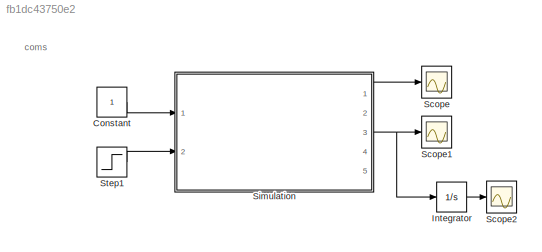
MODEL slx_fb1dc43750e2
KIND model
CONFIG AbsTol = auto
CONFIG EnableMultiTasking = off
CONFIG FixedStep = auto
CONFIG MaxStep = auto
CONFIG MinStep = auto
CONFIG RelTol = 1e-3
CONFIG SampleTimeConstraint = Unconstrained
CONFIG SolverName = VariableStepAuto
CONFIG StartTime = 0.0
CONFIG StopTime = 10.0
BLOCK [Constant] Constant
BLOCK [Integrator] Integrator
  Ports = [1, 1]
BLOCK [Scope] Scope
  Floating = off
  NumInputPorts = 1
  Ports = [1]
  ScopeSpecificationString = Simulink.scopes.TimeScopeBlockCfg('CurrentConfiguration', extmgr.ConfigurationSet(extmgr.Configuration('Core','General UI',true),extmgr.Configuration('Core','Source UI',true),extmgr.Configuration('Sources','WiredSimulink',true),extmgr.Configuration('Visuals','Time Domain',true,'SerializedDisplays',{struct('MinYLimReal','-0.12526','MaxYLimReal','1.12731','YLabelReal','','MinYLimMag','0.00000','MaxY...<+1361ch>
BLOCK [Scope] Scope1
  Floating = off
  NumInputPorts = 1
  Ports = [1]
  ScopeSpecificationString = Simulink.scopes.TimeScopeBlockCfg('CurrentConfiguration', extmgr.ConfigurationSet(extmgr.Configuration('Core','General UI',true),extmgr.Configuration('Core','Source UI',true),extmgr.Configuration('Sources','WiredSimulink',true,'DataLoggingVariableName','ScopeData1'),extmgr.Configuration('Visuals','Time Domain',true,'SerializedDisplays',{struct('MinYLimReal','-0.06989','MaxYLimReal','0.62903','YLab...<+1401ch>
BLOCK [Scope] Scope2
  Floating = off
  NumInputPorts = 1
  Ports = [1]
  ScopeSpecificationString = Simulink.scopes.TimeScopeBlockCfg('CurrentConfiguration', extmgr.ConfigurationSet(extmgr.Configuration('Core','General UI',true),extmgr.Configuration('Core','Source UI',true),extmgr.Configuration('Sources','WiredSimulink',true,'DataLoggingVariableName','ScopeData2'),extmgr.Configuration('Visuals','Time Domain',true,'SerializedDisplays',{struct('MinYLimReal','-0.25037','MaxYLimReal','2.25333','YLab...<+1398ch>
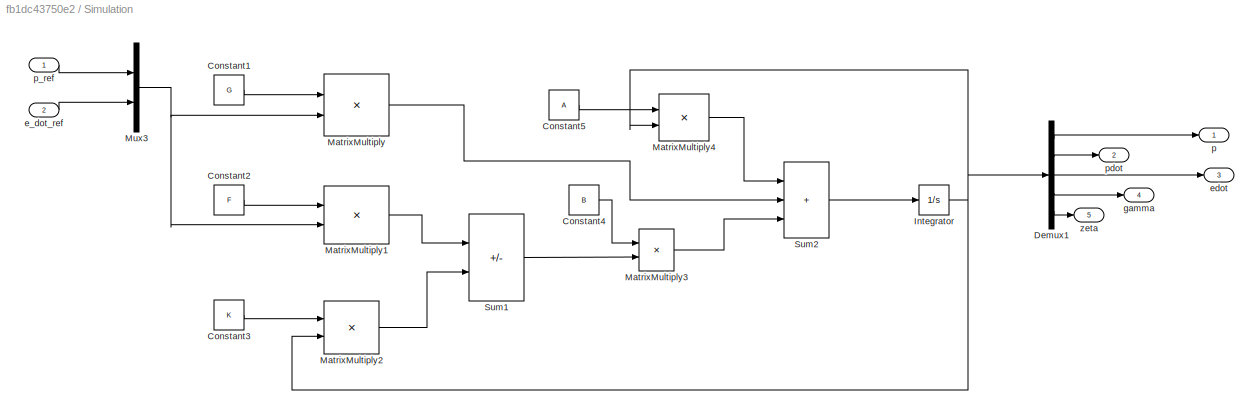
BLOCK [SubSystem] Simulation
  Ports = [2, 5]
  RequestExecContextInheritance = off
BLOCK [Constant] Simulation/Constant1
  Value = G
BLOCK [Constant] Simulation/Constant2
  Value = F
BLOCK [Constant] Simulation/Constant3
  Value = K
BLOCK [Constant] Simulation/Constant4
  Value = B
BLOCK [Constant] Simulation/Constant5
  Value = A
BLOCK [Demux] Simulation/Demux1
  Outputs = 5
  Ports = [1, 5]
BLOCK [Integrator] Simulation/Integrator
  Ports = [1, 1]
BLOCK [Product] Simulation/MatrixMultiply
  Multiplication = Matrix(*)
  Ports = [2, 1]
BLOCK [Product] Simulation/MatrixMultiply1
  Multiplication = Matrix(*)
  Ports = [2, 1]
BLOCK [Product] Simulation/MatrixMultiply2
  Multiplication = Matrix(*)
  Ports = [2, 1]
BLOCK [Product] Simulation/MatrixMultiply3
  Multiplication = Matrix(*)
  Ports = [2, 1]
BLOCK [Product] Simulation/MatrixMultiply4
  Multiplication = Matrix(*)
  Ports = [2, 1]
BLOCK [Mux] Simulation/Mux3
  DisplayOption = bar
  Inputs = 2
  Ports = [2, 1]
BLOCK [Sum] Simulation/Sum1
  IconShape = rectangular
  Inputs = +-
  Ports = [2, 1]
BLOCK [Sum] Simulation/Sum2
  IconShape = rectangular
  Inputs = +++
  Ports = [3, 1]
BLOCK [Inport] Simulation/e_dot_ref
  Port = 2
BLOCK [Outport] Simulation/edot
  Port = 3
BLOCK [Outport] Simulation/gamma
  Port = 4
BLOCK [Outport] Simulation/p
BLOCK [Inport] Simulation/p_ref
BLOCK [Outport] Simulation/pdot
  Port = 2
BLOCK [Outport] Simulation/zeta
  Port = 5
BLOCK [Step] Step1
  After = 0
  Before = 1
  SampleTime = 0
  Time = 2
ANNOTATION (root): coms
LINE Constant:1 -> Simulation:1
LINE Integrator:1 -> Scope2:1
LINE Simulation/Constant1:1 -> Simulation/MatrixMultiply:1
LINE Simulation/Constant2:1 -> Simulation/MatrixMultiply1:1
LINE Simulation/Constant3:1 -> Simulation/MatrixMultiply2:1
LINE Simulation/Constant4:1 -> Simulation/MatrixMultiply3:1
LINE Simulation/Constant5:1 -> Simulation/MatrixMultiply4:1
LINE Simulation/Demux1:1 -> Simulation/p:1
LINE Simulation/Demux1:2 -> Simulation/pdot:1
LINE Simulation/Demux1:3 -> Simulation/edot:1
LINE Simulation/Demux1:4 -> Simulation/gamma:1
LINE Simulation/Demux1:5 -> Simulation/zeta:1
NET Simulation/Integrator:1 -> Simulation/Demux1:1, Simulation/MatrixMultiply2:2, Simulation/MatrixMultiply4:2
LINE Simulation/MatrixMultiply1:1 -> Simulation/Sum1:1
LINE Simulation/MatrixMultiply2:1 -> Simulation/Sum1:2
LINE Simulation/MatrixMultiply3:1 -> Simulation/Sum2:3
LINE Simulation/MatrixMultiply4:1 -> Simulation/Sum2:1
LINE Simulation/MatrixMultiply:1 -> Simulation/Sum2:2
NET Simulation/Mux3:1 -> Simulation/MatrixMultiply1:2, Simulation/MatrixMultiply:2
LINE Simulation/Sum1:1 -> Simulation/MatrixMultiply3:2
LINE Simulation/Sum2:1 -> Simulation/Integrator:1
LINE Simulation/e_dot_ref:1 -> Simulation/Mux3:2
LINE Simulation/p_ref:1 -> Simulation/Mux3:1
LINE Simulation:1 -> Scope:1
NET Simulation:3 -> Integrator:1, Scope1:1
LINE Step1:1 -> Simulation:2
note: NET lines group one-source signal fan-out (src -> all destinations, sorted); 1:1 wires keep LINE
